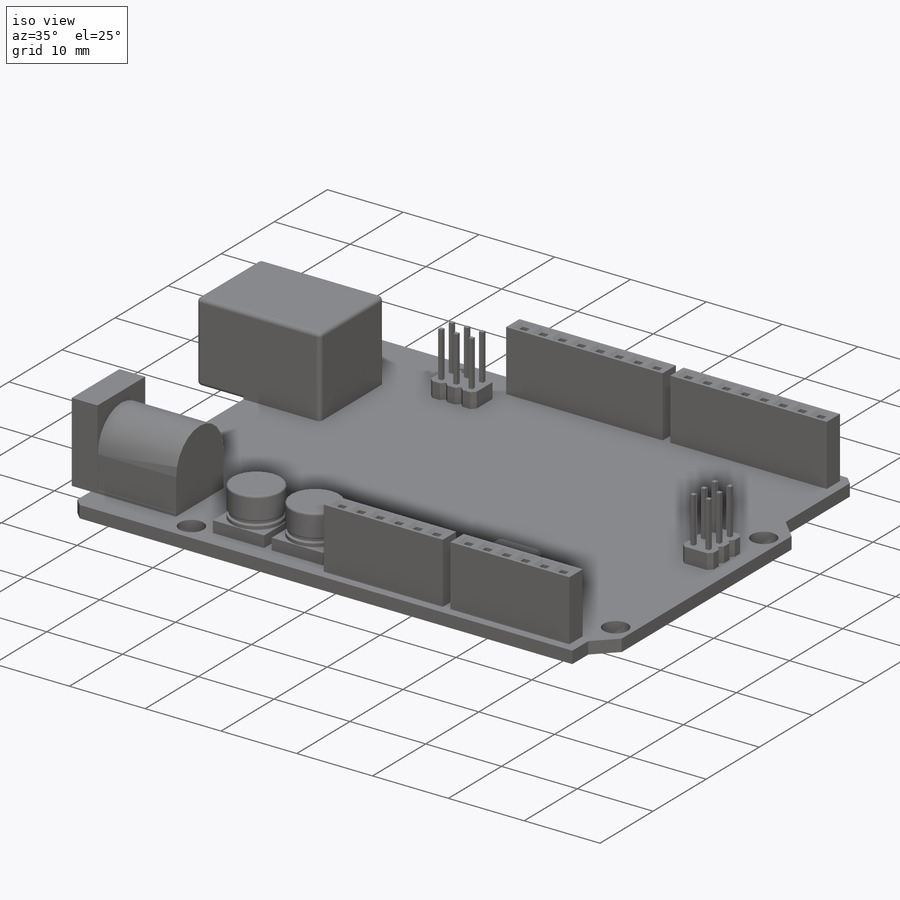
[diagram: iso view]
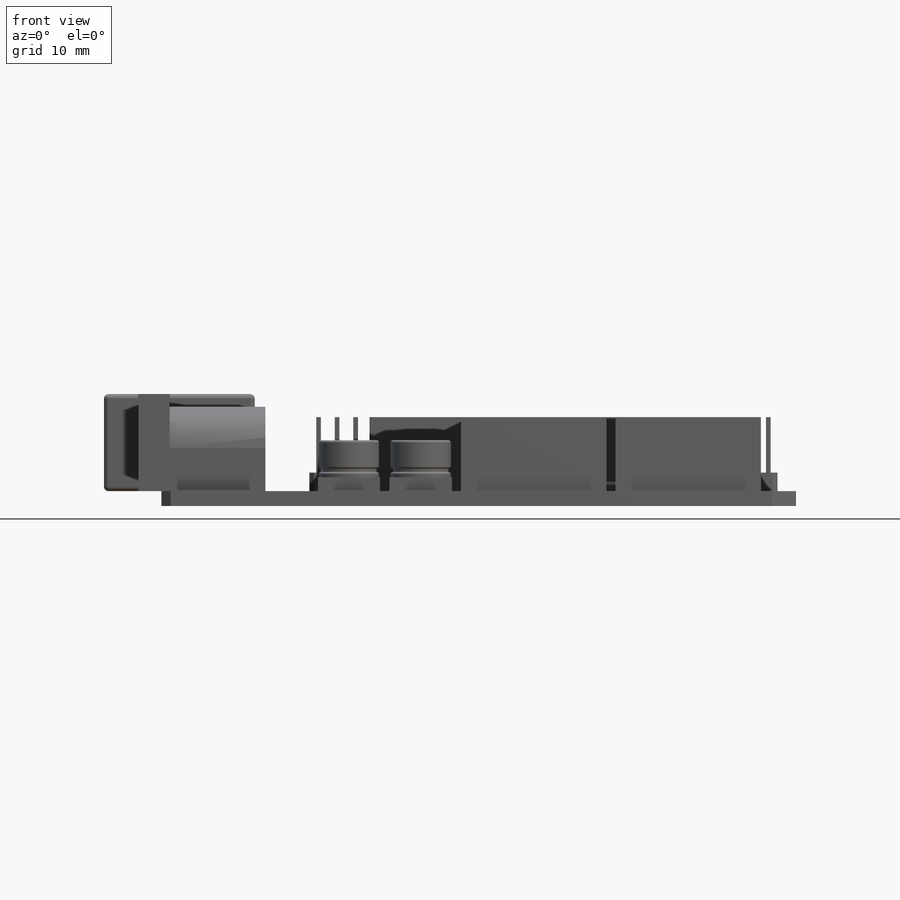
[diagram: front view]
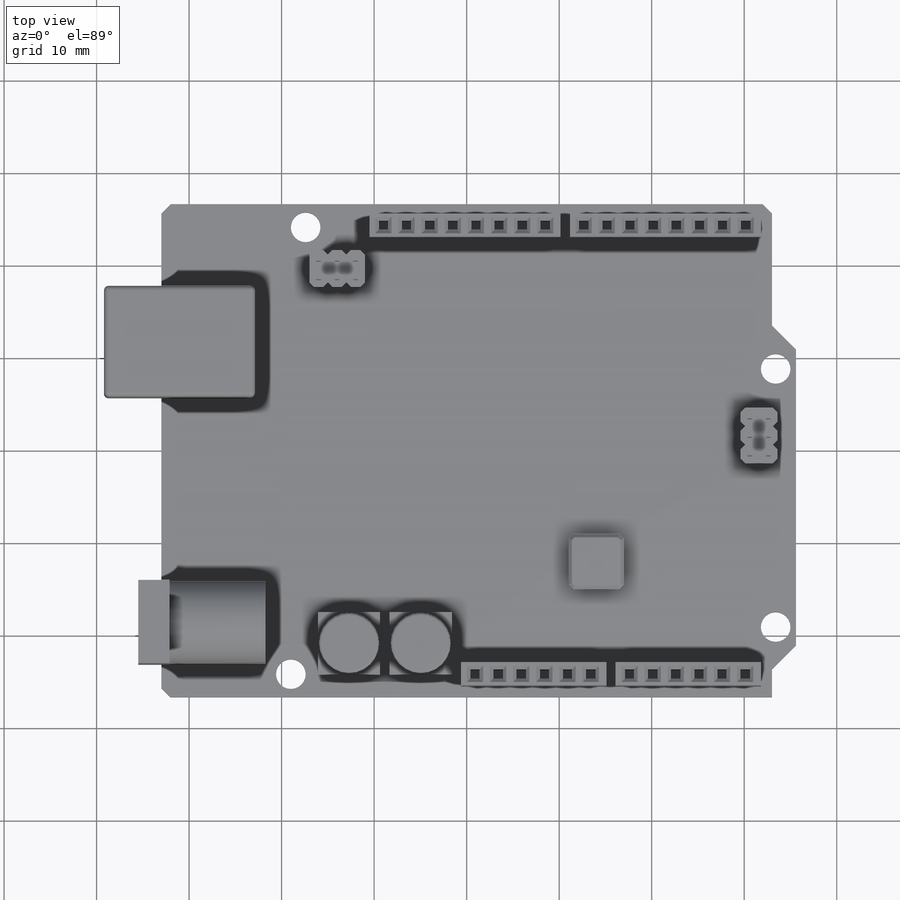
[diagram: top view]
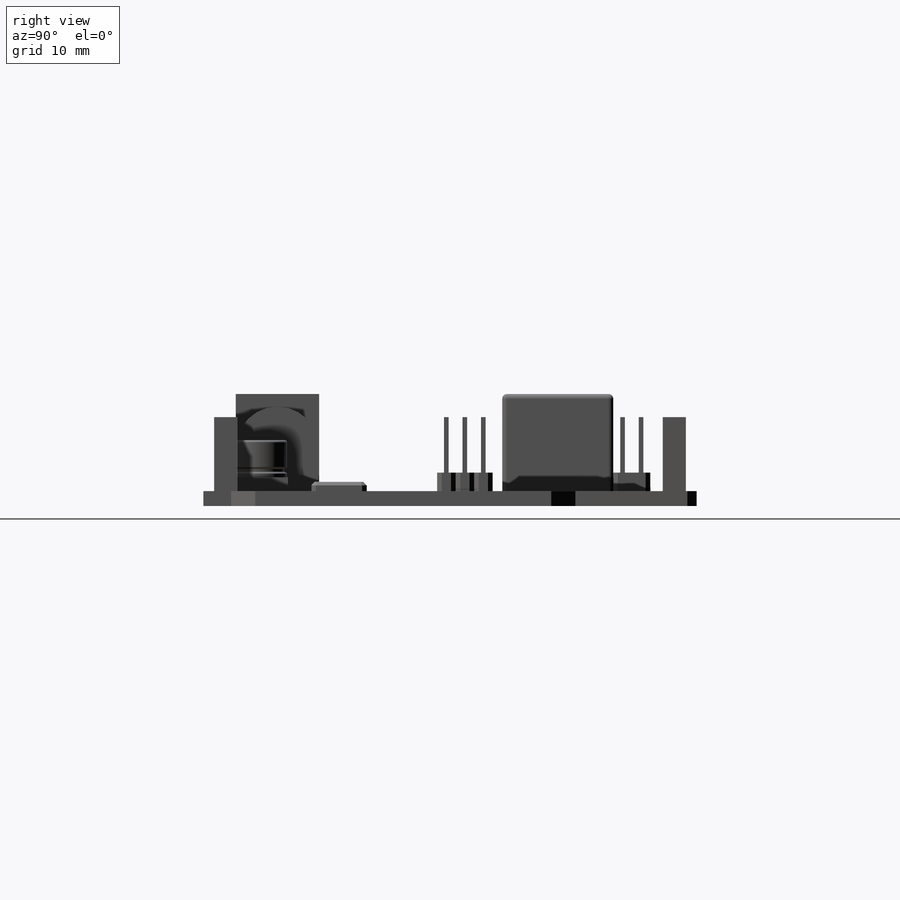
[diagram: right view]
SOLIDWORKS PART (.sldprt)
format: sldprt  version: not decoded by parser v0  size: 1,216,512 bytes
history: native  units: mm
features: sketch x12, extrude x8, cut_extrude x4, fillet x4, chamfer x2, material x1, plane x1 (+11 scaffold rows collapsed)
feature tree (43):
  scaffold x11  (default folders/planes/origin — collapsed)
  material  "Material <not specified>"
  sketch  "Sketch1"  dims[c1.D7=3.2mm c1.D1=66.0mm c1.D2=53.3mm c1.D3=68.6mm c1.D4=32.0mm c1.D5=~3.676955mm c2.D5=45.0deg c2.D6=2.6mm c3.D6=45.0deg c4.D6=3.0mm c4.D8=2.5mm c4.D9=27.9mm c4.D10=5.1mm c4.D11=50.8mm c4.D12=14.0mm c4.D16=2.5mm]
  extrude  "Boss-Extrude1"  Depth=1.6mm
  sketch  "Sketch2"  dims[D1=16.3mm D2=12.0mm D3=6.2mm D4=9.0mm D5=9.0mm D6=13.75mm D7=2.5mm D8=3.5mm]
  extrude  "Boss-Extrude2"  Depth=10.5mm
  sketch  "Sketch4"  dims[D1=2.5mm D2=7.5mm D3=9.0mm D4=1.5mm]
  cut_extrude  "Cut-Extrude1"  Depth=10mm
  fillet  "Fillet1"  Radius=0.5mm
  sketch  "Sketch5"  dims[D1=7.0mm D2=1.0mm]
  cut_extrude  "Cut-Extrude2"  Depth=10mm
  sketch  "Sketch6"
  cut_extrude  "Cut-Extrude3"  Depth=3.4mm
  fillet  "Fillet2"  Radius=0.5mm
  sketch  "Sketch7"  dims[D1=20.65mm D2=2.5mm D3=23.0mm D4=1.0mm D5=1.0mm D6=0.5mm D7=1.0mm D8=1.0mm D10=15.7mm D11=23.0mm D12=1.0mm D13=1.0mm D14=1.0mm D15=1.0mm D16=1.0mm D17=1.0mm D18=1.0mm D9=8.0 D19=6.0]
  extrude  "Boss-Extrude3"  Depth=8mm
  chamfer  "Chamfer1"  Distance=0.375mm Angle=45deg
  sketch  "Sketch8"  dims[D1=6.75mm D2=1.0mm D3=1.0mm]
  extrude  "Boss-Extrude4"  Depth=1.5mm
  sketch  "Sketch9"  dims[D1=6.5mm]
  extrude  "Boss-Extrude5"  Depth=4mm
  fillet  "Fillet3"  Radius=0.25mm
  plane  "Plane1"  Offset=1mm
  sketch  "Sketch10"  dims[D1=6.5mm D2=6.0mm]
  cut_extrude  "Cut-Extrude4"  Depth=0.5mm
  fillet  "Fillet4"  Radius=0.125mm
  sketch  "Sketch11"  dims[c1.D1=2.0mm c1.D2=4.0mm c1.D3=0.5mm c1.D8=0.5mm c1.D9=0.5mm c1.D10=0.5mm c1.D11=0.5mm c1.D12=0.5mm c1.D13=0.5mm c1.D14=0.5mm c1.D15=0.5mm c1.D16=0.5mm c1.D17=0.5mm c1.D18=0.5mm c1.D19=0.5mm c1.D20=0.5mm c1.D21=0.5mm c1.D22=0.5mm c1.D23=7.0mm c1.D24=19.0mm c1.D25=0.5mm c1.D26=0.5mm c1.D27=0.5mm c1.D28=0.5mm c1.D29=0.5mm c1.D30=0.5mm c1.D31=0.5mm c1.D32=0.5mm c1.D33=4.0mm c1.D34=0.5mm c1.D35=0.5mm c1.D36=0.5mm c1.D37=0.5mm c1.D38=0.5mm c1.D39=0.5mm c1.D40=0.5mm c1.D41=0.5mm c1.D42=0.5mm c1.D43=0.5mm c1.D44=0.5mm c1.D45=0.5mm c1.D46=0.5mm c1.D47=0.5mm c1.D48=0.5mm c1.D49=0.5mm c1.D50=2.0mm c1.D51=2.0mm c1.D52=1.0mm c2.D8=0.5mm c2.D14=0.5mm c2.D16=0.5mm c2.D22=0.5mm c2.D25=0.5mm c2.D26=0.5mm c2.D27=0.5mm c2.D28=0.5mm c2.D29=0.5mm c2.D30=0.5mm c2.D31=0.5mm c2.D32=0.5mm c2.D33=0.5mm c2.D34=0.5mm c2.D35=0.5mm c2.D36=0.5mm c2.D37=0.5mm c2.D38=0.5mm c2.D39=0.5mm c2.D40=0.5mm c3.D8=4.0mm c3.D14=2.0mm c3.D16=4.0mm c3.D22=2.0mm c3.D28=0.5mm c3.D29=0.5mm c3.D30=0.5mm c3.D31=0.5mm c3.D32=0.5mm c3.D33=0.5mm c3.D34=0.5mm c3.D35=0.5mm c3.D36=4.0mm c3.D37=2.0mm c3.D38=0.5mm c3.D39=0.5mm c3.D40=0.5mm c3.D41=0.5mm c3.D42=0.5mm c3.D43=0.5mm c3.D44=0.5mm c3.D45=0.5mm c4.D14=4.0mm]
  extrude  "Boss-Extrude7"  Depth=2mm
  sketch  "Sketch12"  dims[D1=0.5mm D2=2.0mm D4=0.5mm D5=2.0mm D3=3.0 D6=3.0]
  extrude  "Boss-Extrude8"  [1 undecoded]
  sketch  "Sketch13"  dims[D1=6.0mm D2=12.0mm D3=14.0mm]
  extrude  "Boss-Extrude9"  Depth=1mm
  chamfer  "Chamfer2"  Distance=0.375mm Angle=45deg
decode coverage: 28 of 30 modeling features carry decoded parameters
note: ~ marks probable driven/reference dimensions
note: 1 parameter value undecoded
note: suppression state not decoded; provenance and decode notes live in map.json
